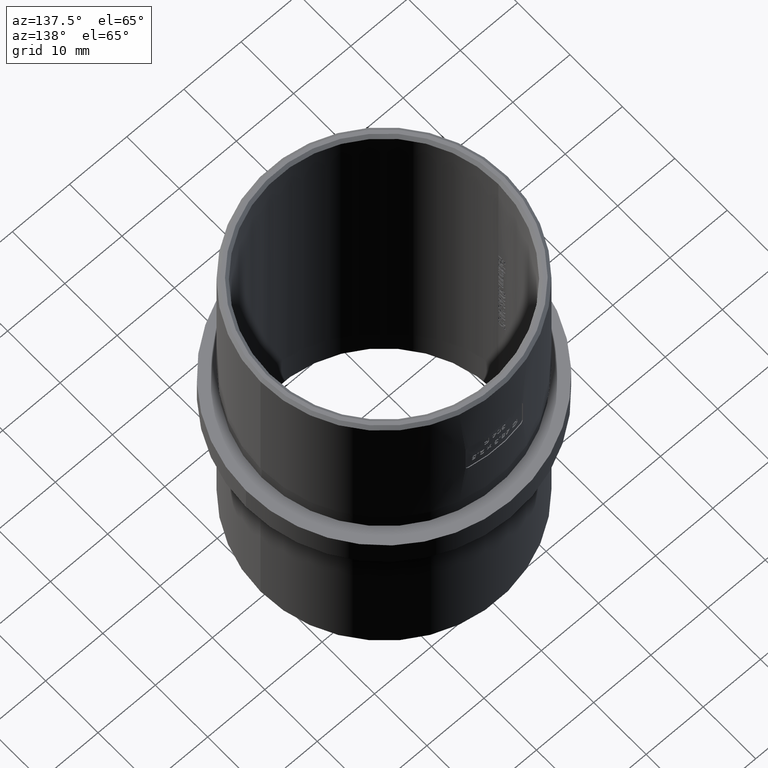
[diagram: clean part render]
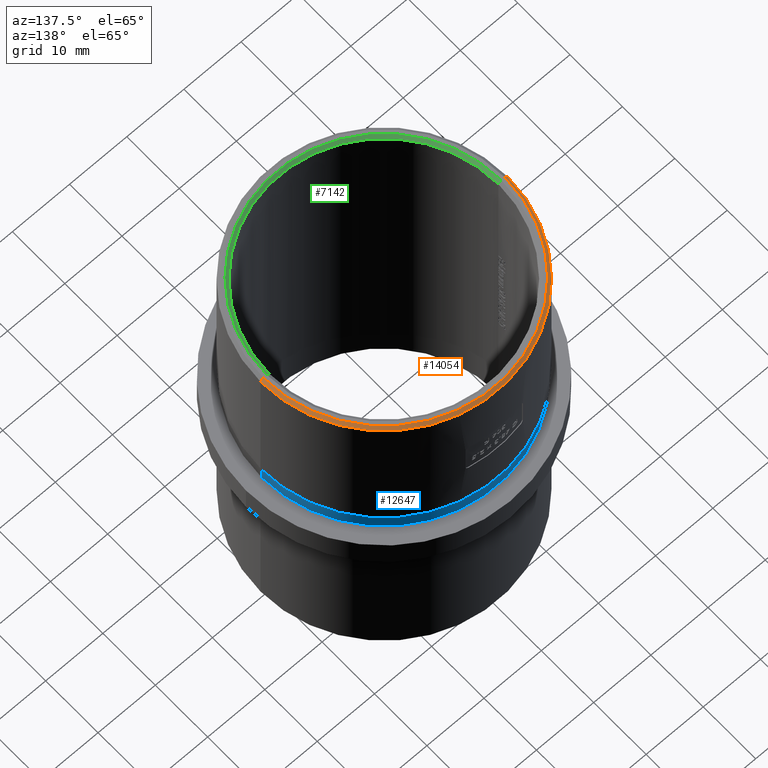
[diagram: same view with three faces highlighted in distinct colors, each labeled with its STEP entity id]
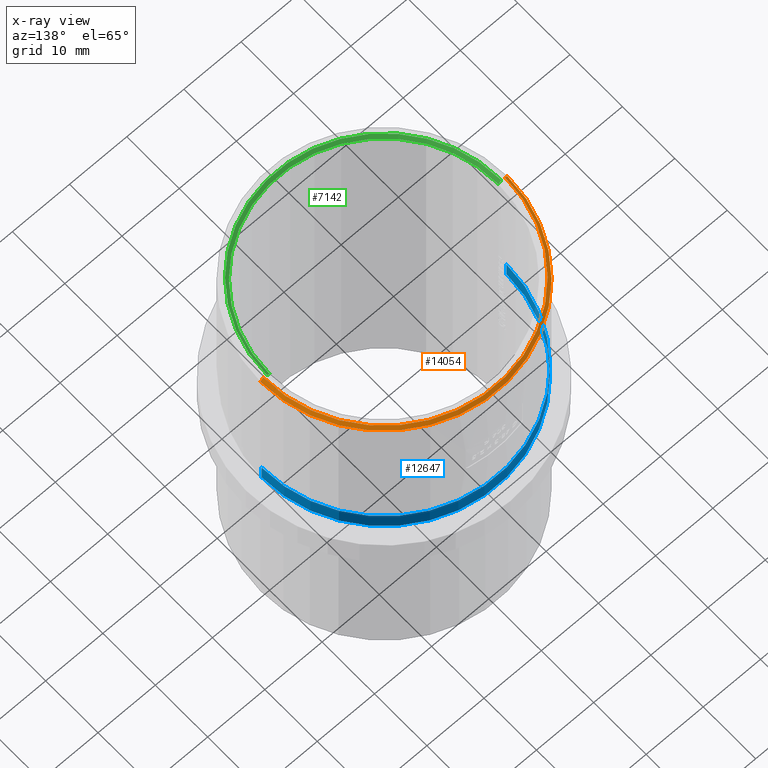
[diagram: x-ray of the same camera — body ghosted, the three highlighted faces saturated]
A machine part, auxiliary view with three faces highlighted in distinct colors.
The next image is the same camera in x-ray (body ghosted, the three faces saturated) — at least one of them is partly hidden behind the body in this view.
Their STEP definitions:

[orange] entity #14054 — the highlighted conical surface has half-angle 45 deg.
#1953 = DIRECTION ( 'NONE',  ( 0.0000000000000000000, 0.0000000000000000000, -1.000000000000000000 ) ) ;
#2176 = DIRECTION ( 'NONE',  ( 0.0000000000000000000, 0.0000000000000000000, -1.000000000000000000 ) ) ;
#2432 = CARTESIAN_POINT ( 'NONE',  ( 21.09999999999999400, 2.584004746200914200E-015, 32.50000000000000000 ) ) ;
#3835 = CARTESIAN_POINT ( 'NONE',  ( 0.0000000000000000000, 0.0000000000000000000, 32.50000000000000000 ) ) ;
#4084 = VERTEX_POINT ( 'NONE', #17387 ) ;
#4254 = EDGE_LOOP ( 'NONE', ( #16683, #5915, #8392, #20417 ) ) ;
#4991 = EDGE_CURVE ( 'NONE', #4084, #20139, #18489, .T. ) ;
#5102 = VECTOR ( 'NONE', #19610, 1000.000000000000100 ) ;
#5664 = CARTESIAN_POINT ( 'NONE',  ( -21.59999999999999800, 0.0000000000000000000, 32.00000000000000000 ) ) ;
#5915 = ORIENTED_EDGE ( 'NONE', *, *, #11357, .T. ) ;
#6291 = LINE ( 'NONE', #2432, #11969 ) ;
#7180 = CARTESIAN_POINT ( 'NONE',  ( -21.09999999999999400, 0.0000000000000000000, 32.50000000000000000 ) ) ;
#7363 = AXIS2_PLACEMENT_3D ( 'NONE', #9603, #18754, #15186 ) ;
#7383 = CIRCLE ( 'NONE', #20577, 21.59999999999999800 ) ;
#7834 = DIRECTION ( 'NONE',  ( 0.7071067811865500200, 8.659560562354962400E-017, -0.7071067811865451300 ) ) ;
#8392 = ORIENTED_EDGE ( 'NONE', *, *, #22754, .F. ) ;
#9436 = CARTESIAN_POINT ( 'NONE',  ( 21.59999999999999800, 2.645237086158282600E-015, 32.00000000000000000 ) ) ;
#9603 = CARTESIAN_POINT ( 'NONE',  ( 0.0000000000000000000, 0.0000000000000000000, 32.50000000000000000 ) ) ;
#10840 = VERTEX_POINT ( 'NONE', #9436 ) ;
#11357 = EDGE_CURVE ( 'NONE', #4084, #10840, #6291, .T. ) ;
#11761 = VERTEX_POINT ( 'NONE', #5664 ) ;
#11969 = VECTOR ( 'NONE', #7834, 1000.000000000000100 ) ;
#12677 = AXIS2_PLACEMENT_3D ( 'NONE', #3835, #1953, #18241 ) ;
#13101 = CARTESIAN_POINT ( 'NONE',  ( 0.0000000000000000000, 0.0000000000000000000, 32.00000000000000000 ) ) ;
#14054 = ADVANCED_FACE ( 'NONE', ( #20376 ), #15532, .T. ) ;
#15186 = DIRECTION ( 'NONE',  ( 1.000000000000000000, 0.0000000000000000000, 0.0000000000000000000 ) ) ;
#15532 = CONICAL_SURFACE ( 'NONE', #12677, 21.09999999999999400, 0.7853981633974517200 ) ;
#16579 = DIRECTION ( 'NONE',  ( 1.000000000000000000, 0.0000000000000000000, 0.0000000000000000000 ) ) ;
#16683 = ORIENTED_EDGE ( 'NONE', *, *, #4991, .F. ) ;
#16685 = LINE ( 'NONE', #7180, #5102 ) ;
#16768 = CARTESIAN_POINT ( 'NONE',  ( -21.09999999999999400, 0.0000000000000000000, 32.50000000000000000 ) ) ;
#17387 = CARTESIAN_POINT ( 'NONE',  ( 21.09999999999999400, 2.614620916179598400E-015, 32.50000000000000000 ) ) ;
#18241 = DIRECTION ( 'NONE',  ( -1.000000000000000000, 0.0000000000000000000, 0.0000000000000000000 ) ) ;
#18489 = CIRCLE ( 'NONE', #7363, 21.09999999999999400 ) ;
#18754 = DIRECTION ( 'NONE',  ( 0.0000000000000000000, 0.0000000000000000000, 1.000000000000000000 ) ) ;
#19535 = EDGE_CURVE ( 'NONE', #20139, #11761, #16685, .T. ) ;
#19610 = DIRECTION ( 'NONE',  ( -0.7071067811865500200, 0.0000000000000000000, -0.7071067811865451300 ) ) ;
#20139 = VERTEX_POINT ( 'NONE', #16768 ) ;
#20376 = FACE_OUTER_BOUND ( 'NONE', #4254, .T. ) ;
#20417 = ORIENTED_EDGE ( 'NONE', *, *, #19535, .F. ) ;
#20577 = AXIS2_PLACEMENT_3D ( 'NONE', #13101, #2176, #16579 ) ;
#22754 = EDGE_CURVE ( 'NONE', #11761, #10840, #7383, .T. ) ;

[blue] entity #12647 — the highlighted cylindrical surface (partial cylindrical patch) has radius 21.4 mm, axis along (-0, -0, -1).
#37 = EDGE_CURVE ( 'NONE', #6263, #123, #6446, .T. ) ;
#123 = VERTEX_POINT ( 'NONE', #22257 ) ;
#2805 = CARTESIAN_POINT ( 'NONE',  ( 0.0000000000000000000, 0.0000000000000000000, 5.500000000000000000 ) ) ;
#3136 = FACE_OUTER_BOUND ( 'NONE', #8789, .T. ) ;
#3733 = LINE ( 'NONE', #13548, #16764 ) ;
#3778 = DIRECTION ( 'NONE',  ( -0.0000000000000000000, -0.0000000000000000000, -1.000000000000000000 ) ) ;
#3802 = CARTESIAN_POINT ( 'NONE',  ( -21.39999999999999900, 0.0000000000000000000, 5.500000000000000000 ) ) ;
#4894 = EDGE_CURVE ( 'NONE', #12625, #123, #8325, .T. ) ;
#4925 = CARTESIAN_POINT ( 'NONE',  ( 0.0000000000000000000, 0.0000000000000000000, 2.500000000000000000 ) ) ;
#5789 = DIRECTION ( 'NONE',  ( -0.0000000000000000000, -0.0000000000000000000, -1.000000000000000000 ) ) ;
#5976 = CYLINDRICAL_SURFACE ( 'NONE', #10859, 21.39999999999999900 ) ;
#6263 = VERTEX_POINT ( 'NONE', #18678 ) ;
#6366 = EDGE_CURVE ( 'NONE', #9986, #6263, #3733, .T. ) ;
#6446 = CIRCLE ( 'NONE', #12602, 21.39999999999999900 ) ;
#6704 = CIRCLE ( 'NONE', #22996, 21.39999999999999900 ) ;
#6755 = DIRECTION ( 'NONE',  ( 0.0000000000000000000, 0.0000000000000000000, 1.000000000000000000 ) ) ;
#8325 = LINE ( 'NONE', #3802, #21660 ) ;
#8789 = EDGE_LOOP ( 'NONE', ( #11527, #13576, #13324, #12305 ) ) ;
#9986 = VERTEX_POINT ( 'NONE', #10893 ) ;
#10859 = AXIS2_PLACEMENT_3D ( 'NONE', #12816, #3778, #16136 ) ;
#10893 = CARTESIAN_POINT ( 'NONE',  ( 21.39999999999999900, 2.620744150175335900E-015, 5.500000000000000000 ) ) ;
#11527 = ORIENTED_EDGE ( 'NONE', *, *, #13004, .F. ) ;
#12305 = ORIENTED_EDGE ( 'NONE', *, *, #4894, .F. ) ;
#12602 = AXIS2_PLACEMENT_3D ( 'NONE', #4925, #6755, #19422 ) ;
#12625 = VERTEX_POINT ( 'NONE', #16218 ) ;
#12647 = ADVANCED_FACE ( 'NONE', ( #3136 ), #5976, .T. ) ;
#12816 = CARTESIAN_POINT ( 'NONE',  ( 0.0000000000000000000, 0.0000000000000000000, 5.500000000000000000 ) ) ;
#13004 = EDGE_CURVE ( 'NONE', #9986, #12625, #6704, .T. ) ;
#13324 = ORIENTED_EDGE ( 'NONE', *, *, #37, .T. ) ;
#13548 = CARTESIAN_POINT ( 'NONE',  ( 21.39999999999999900, 2.620744150175335900E-015, 5.500000000000000000 ) ) ;
#13576 = ORIENTED_EDGE ( 'NONE', *, *, #6366, .T. ) ;
#16136 = DIRECTION ( 'NONE',  ( -1.000000000000000000, 0.0000000000000000000, 0.0000000000000000000 ) ) ;
#16218 = CARTESIAN_POINT ( 'NONE',  ( -21.39999999999999900, 0.0000000000000000000, 5.500000000000000000 ) ) ;
#16764 = VECTOR ( 'NONE', #22441, 1000.000000000000000 ) ;
#17381 = DIRECTION ( 'NONE',  ( 0.0000000000000000000, 0.0000000000000000000, 1.000000000000000000 ) ) ;
#18678 = CARTESIAN_POINT ( 'NONE',  ( 21.39999999999999900, 2.620744150175335900E-015, 2.500000000000000000 ) ) ;
#19422 = DIRECTION ( 'NONE',  ( 1.000000000000000000, 0.0000000000000000000, 0.0000000000000000000 ) ) ;
#21660 = VECTOR ( 'NONE', #5789, 1000.000000000000000 ) ;
#22257 = CARTESIAN_POINT ( 'NONE',  ( -21.39999999999999900, 0.0000000000000000000, 2.500000000000000000 ) ) ;
#22441 = DIRECTION ( 'NONE',  ( -0.0000000000000000000, -0.0000000000000000000, -1.000000000000000000 ) ) ;
#22809 = DIRECTION ( 'NONE',  ( 1.000000000000000000, 0.0000000000000000000, 0.0000000000000000000 ) ) ;
#22996 = AXIS2_PLACEMENT_3D ( 'NONE', #2805, #17381, #22809 ) ;

[green] entity #7142 — the highlighted conical surface has half-angle 45 deg.
#59 = CARTESIAN_POINT ( 'NONE',  ( -20.00000000000000000, 2.449293598294706500E-015, 32.00000000000000000 ) ) ;
#128 = FACE_OUTER_BOUND ( 'NONE', #1536, .T. ) ;
#1489 = ORIENTED_EDGE ( 'NONE', *, *, #21191, .F. ) ;
#1536 = EDGE_LOOP ( 'NONE', ( #1489, #11953, #21339, #19487 ) ) ;
#3259 = LINE ( 'NONE', #13854, #18828 ) ;
#3432 = DIRECTION ( 'NONE',  ( 1.000000000000000000, 0.0000000000000000000, 0.0000000000000000000 ) ) ;
#3507 = VERTEX_POINT ( 'NONE', #15530 ) ;
#3819 = CONICAL_SURFACE ( 'NONE', #17365, 20.00000000000000000, 0.7853981633974378400 ) ;
#4659 = CARTESIAN_POINT ( 'NONE',  ( -20.49999999999998900, 2.510525938252072900E-015, 32.50000000000000000 ) ) ;
#7142 = ADVANCED_FACE ( 'NONE', ( #128 ), #3819, .F. ) ;
#7549 = EDGE_CURVE ( 'NONE', #15519, #22801, #3259, .T. ) ;
#8609 = LINE ( 'NONE', #59, #21920 ) ;
#10207 = DIRECTION ( 'NONE',  ( 1.000000000000000000, 0.0000000000000000000, 0.0000000000000000000 ) ) ;
#10709 = EDGE_CURVE ( 'NONE', #3507, #22370, #8609, .T. ) ;
#11756 = DIRECTION ( 'NONE',  ( 1.000000000000000000, 0.0000000000000000000, 0.0000000000000000000 ) ) ;
#11953 = ORIENTED_EDGE ( 'NONE', *, *, #10709, .T. ) ;
#12389 = DIRECTION ( 'NONE',  ( 0.0000000000000000000, 0.0000000000000000000, 1.000000000000000000 ) ) ;
#13228 = CIRCLE ( 'NONE', #17622, 20.00000000000000000 ) ;
#13854 = CARTESIAN_POINT ( 'NONE',  ( 20.00000000000000000, 0.0000000000000000000, 32.00000000000000000 ) ) ;
#14870 = CARTESIAN_POINT ( 'NONE',  ( 20.00000000000000000, 0.0000000000000000000, 32.00000000000000000 ) ) ;
#15519 = VERTEX_POINT ( 'NONE', #14870 ) ;
#15530 = CARTESIAN_POINT ( 'NONE',  ( -20.00000000000000000, 2.449293598294706500E-015, 32.00000000000000000 ) ) ;
#16523 = DIRECTION ( 'NONE',  ( -0.7071067811865401300, 8.659560562354844100E-017, 0.7071067811865549000 ) ) ;
#16726 = CARTESIAN_POINT ( 'NONE',  ( 0.0000000000000000000, 0.0000000000000000000, 32.50000000000000000 ) ) ;
#17365 = AXIS2_PLACEMENT_3D ( 'NONE', #19604, #12389, #3432 ) ;
#17451 = DIRECTION ( 'NONE',  ( 0.0000000000000000000, 0.0000000000000000000, 1.000000000000000000 ) ) ;
#17524 = CARTESIAN_POINT ( 'NONE',  ( 20.49999999999998900, 0.0000000000000000000, 32.50000000000000000 ) ) ;
#17622 = AXIS2_PLACEMENT_3D ( 'NONE', #19122, #17451, #10207 ) ;
#17839 = CIRCLE ( 'NONE', #21366, 20.49999999999998900 ) ;
#18828 = VECTOR ( 'NONE', #22973, 1000.000000000000000 ) ;
#19122 = CARTESIAN_POINT ( 'NONE',  ( 0.0000000000000000000, 0.0000000000000000000, 32.00000000000000000 ) ) ;
#19487 = ORIENTED_EDGE ( 'NONE', *, *, #7549, .F. ) ;
#19604 = CARTESIAN_POINT ( 'NONE',  ( 0.0000000000000000000, 0.0000000000000000000, 32.00000000000000000 ) ) ;
#21191 = EDGE_CURVE ( 'NONE', #3507, #15519, #13228, .T. ) ;
#21339 = ORIENTED_EDGE ( 'NONE', *, *, #22716, .F. ) ;
#21366 = AXIS2_PLACEMENT_3D ( 'NONE', #16726, #22623, #11756 ) ;
#21920 = VECTOR ( 'NONE', #16523, 1000.000000000000000 ) ;
#22370 = VERTEX_POINT ( 'NONE', #4659 ) ;
#22623 = DIRECTION ( 'NONE',  ( -0.0000000000000000000, -0.0000000000000000000, -1.000000000000000000 ) ) ;
#22716 = EDGE_CURVE ( 'NONE', #22801, #22370, #17839, .T. ) ;
#22801 = VERTEX_POINT ( 'NONE', #17524 ) ;
#22973 = DIRECTION ( 'NONE',  ( 0.7071067811865401300, 0.0000000000000000000, 0.7071067811865549000 ) ) ;